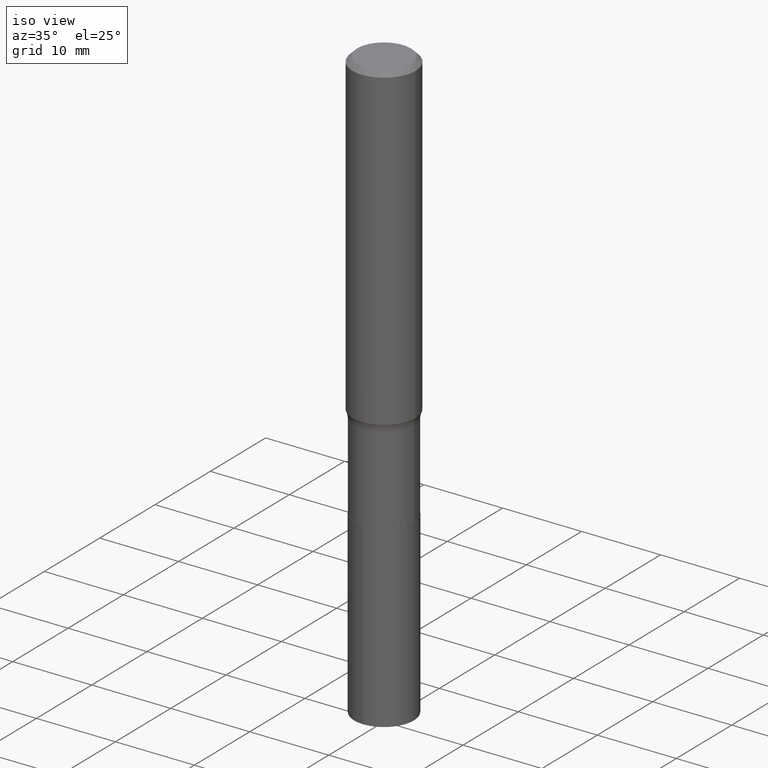
[diagram: clean part render]
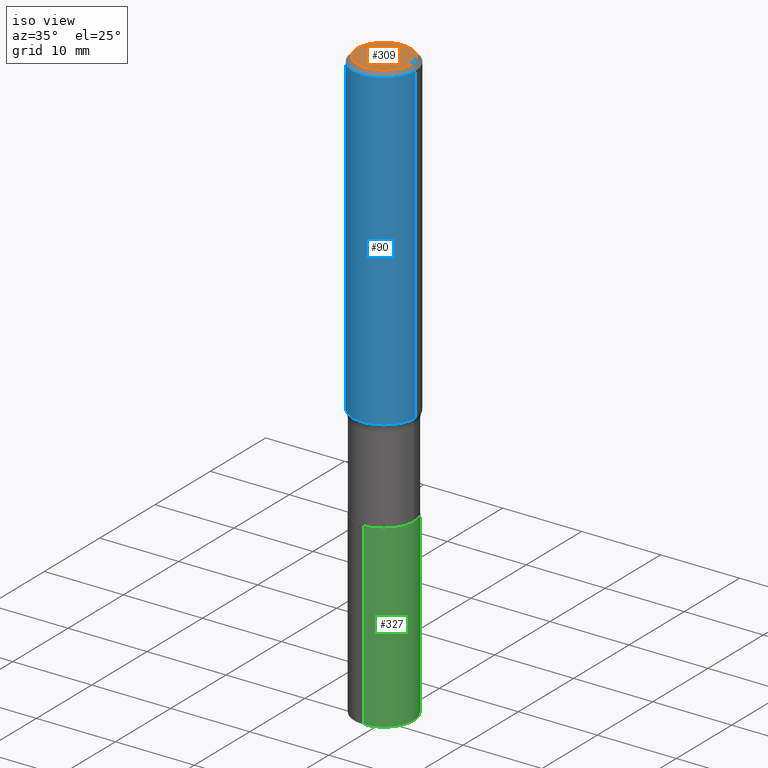
[diagram: same view with three faces highlighted in distinct colors, each labeled with its STEP entity id]
A machine part, iso view with three faces highlighted in distinct colors.
Their STEP definitions:

[orange] entity #309 — the highlighted planar face has unit normal (0, -0, -1).
#20 = AXIS2_PLACEMENT_3D ( 'NONE', #152, #405, #80 ) ;
#51 = EDGE_CURVE ( 'NONE', #133, #76, #303, .T. ) ;
#53 = EDGE_CURVE ( 'NONE', #76, #133, #254, .T. ) ;
#74 = FACE_OUTER_BOUND ( 'NONE', #247, .T. ) ;
#76 = VERTEX_POINT ( 'NONE', #419 ) ;
#80 = DIRECTION ( 'NONE',  ( 1.000000000000000000, -6.982962677686266711E-15, 4.876170806578254279E-29 ) ) ;
#91 = ORIENTED_EDGE ( 'NONE', *, *, #51, .T. ) ;
#110 = AXIS2_PLACEMENT_3D ( 'NONE', #260, #253, #321 ) ;
#133 = VERTEX_POINT ( 'NONE', #371 ) ;
#135 = DIRECTION ( 'NONE',  ( 1.000000000000000000, -6.982962677686266711E-15, 4.876170806578254279E-29 ) ) ;
#152 = CARTESIAN_POINT ( 'NONE',  ( -1.002970424325032604E-46, 1.431975951230895391E-32, 4.101342130344482109E-18 ) ) ;
#216 = ORIENTED_EDGE ( 'NONE', *, *, #53, .T. ) ;
#217 = DIRECTION ( 'NONE',  ( -2.445468806185136597E-29, 3.491481338843145583E-15, 1.000000000000000000 ) ) ;
#247 = EDGE_LOOP ( 'NONE', ( #216, #91 ) ) ;
#253 = DIRECTION ( 'NONE',  ( 2.438088387897960049E-29, -3.491481338843145188E-15, -1.000000000000000000 ) ) ;
#254 = CIRCLE ( 'NONE', #412, 0.1338749999999999940 ) ;
#260 = CARTESIAN_POINT ( 'NONE',  ( -5.014852121625163022E-47, 7.159879756154476955E-33, 2.050671065172241055E-18 ) ) ;
#289 = PLANE ( 'NONE',  #110 ) ;
#303 = CIRCLE ( 'NONE', #20, 0.1338749999999999940 ) ;
#309 = ADVANCED_FACE ( 'NONE', ( #74 ), #289, .F. ) ;
#321 = DIRECTION ( 'NONE',  ( -1.000000000000000000, 6.982962677686265922E-15, -4.876176775795935793E-29 ) ) ;
#371 = CARTESIAN_POINT ( 'NONE',  ( 0.1338749999999999940, -1.040731925365424925E-15, 4.101342130351390035E-18 ) ) ;
#405 = DIRECTION ( 'NONE',  ( -2.445468806185136597E-29, 3.491481338843145583E-15, 1.000000000000000000 ) ) ;
#412 = AXIS2_PLACEMENT_3D ( 'NONE', #455, #217, #135 ) ;
#419 = CARTESIAN_POINT ( 'NONE',  ( -0.1338749999999999940, 9.760872517903331886E-16, 4.101342130337800673E-18 ) ) ;
#455 = CARTESIAN_POINT ( 'NONE',  ( -1.002970424325032604E-46, 1.431975951230895391E-32, 4.101342130344482109E-18 ) ) ;

[blue] entity #90 — the highlighted cylindrical surface (partial cylindrical patch) has radius 4.0005 mm, axis along (-0, 0, 1).
#6 = EDGE_CURVE ( 'NONE', #150, #395, #160, .T. ) ;
#17 = EDGE_CURVE ( 'NONE', #18, #180, #223, .T. ) ;
#18 = VERTEX_POINT ( 'NONE', #452 ) ;
#43 = EDGE_CURVE ( 'NONE', #150, #18, #98, .T. ) ;
#46 = AXIS2_PLACEMENT_3D ( 'NONE', #428, #213, #355 ) ;
#57 = CARTESIAN_POINT ( 'NONE',  ( -0.1575000000000001954, -4.423060539265832036E-15, -1.587339243784791742 ) ) ;
#67 = CARTESIAN_POINT ( 'NONE',  ( 0.000000000000000000, 0.000000000000000000, 0.000000000000000000 ) ) ;
#69 = VECTOR ( 'NONE', #227, 39.37007874015748143 ) ;
#90 = ADVANCED_FACE ( 'NONE', ( #244 ), #283, .T. ) ;
#93 = CARTESIAN_POINT ( 'NONE',  ( 0.1575000000000001954, -6.641981969823579487E-15, -1.587339243784791742 ) ) ;
#98 = LINE ( 'NONE', #468, #69 ) ;
#100 = AXIS2_PLACEMENT_3D ( 'NONE', #344, #264, #291 ) ;
#112 = EDGE_CURVE ( 'NONE', #395, #180, #250, .T. ) ;
#150 = VERTEX_POINT ( 'NONE', #57 ) ;
#160 = CIRCLE ( 'NONE', #46, 0.1575000000000001954 ) ;
#176 = DIRECTION ( 'NONE',  ( -2.445468806185136597E-29, 3.491481338843145583E-15, 1.000000000000000000 ) ) ;
#180 = VERTEX_POINT ( 'NONE', #199 ) ;
#181 = DIRECTION ( 'NONE',  ( 1.000000000000000000, -6.982962677686267499E-15, 4.876176775795936353E-29 ) ) ;
#185 = ORIENTED_EDGE ( 'NONE', *, *, #43, .F. ) ;
#199 = CARTESIAN_POINT ( 'NONE',  ( 0.1575000000000000011, -1.182302868365756877E-15, -0.02362500000000015976 ) ) ;
#213 = DIRECTION ( 'NONE',  ( -2.445468806185136597E-29, 3.491481338843145583E-15, 1.000000000000000000 ) ) ;
#223 = CIRCLE ( 'NONE', #100, 0.1575000000000000011 ) ;
#227 = DIRECTION ( 'NONE',  ( -2.445468806185136877E-29, 3.491481338843145188E-15, 1.000000000000000000 ) ) ;
#231 = ORIENTED_EDGE ( 'NONE', *, *, #112, .T. ) ;
#244 = FACE_OUTER_BOUND ( 'NONE', #413, .T. ) ;
#250 = LINE ( 'NONE', #286, #324 ) ;
#264 = DIRECTION ( 'NONE',  ( -2.445468806185136597E-29, 3.491481338843145583E-15, 1.000000000000000000 ) ) ;
#276 = ORIENTED_EDGE ( 'NONE', *, *, #17, .F. ) ;
#283 = CYLINDRICAL_SURFACE ( 'NONE', #333, 0.1575000000000000844 ) ;
#286 = CARTESIAN_POINT ( 'NONE',  ( 0.1575000000000000844, -1.099816621735587677E-15, 7.679978421878603638E-30 ) ) ;
#291 = DIRECTION ( 'NONE',  ( 1.000000000000000000, -6.982962677686268288E-15, 0.000000000000000000 ) ) ;
#324 = VECTOR ( 'NONE', #426, 39.37007874015748143 ) ;
#333 = AXIS2_PLACEMENT_3D ( 'NONE', #67, #176, #181 ) ;
#344 = CARTESIAN_POINT ( 'NONE',  ( 5.777420054612423732E-31, -8.248624663016986467E-17, -0.02362500000000015976 ) ) ;
#355 = DIRECTION ( 'NONE',  ( 1.000000000000000000, -6.982962677686265922E-15, 0.000000000000000000 ) ) ;
#376 = ORIENTED_EDGE ( 'NONE', *, *, #6, .T. ) ;
#395 = VERTEX_POINT ( 'NONE', #93 ) ;
#413 = EDGE_LOOP ( 'NONE', ( #185, #376, #231, #276 ) ) ;
#426 = DIRECTION ( 'NONE',  ( -2.445468806185136877E-29, 3.491481338843145188E-15, 1.000000000000000000 ) ) ;
#428 = CARTESIAN_POINT ( 'NONE',  ( 3.881788605509211766E-29, -5.542165348087991217E-15, -1.587339243784791742 ) ) ;
#452 = CARTESIAN_POINT ( 'NONE',  ( -0.1575000000000000011, -1.693220988536922309E-15, -0.02362500000000015976 ) ) ;
#468 = CARTESIAN_POINT ( 'NONE',  ( -0.1575000000000000844, 1.119104808822158392E-15, -7.747322767151481189E-30 ) ) ;

[green] entity #327 — the highlighted cylindrical surface (edge-blend (fillet) strip) has radius 3.7706 mm, axis along (-0, 0, 1).
#2 = CARTESIAN_POINT ( 'NONE',  ( 1.054800691235940897E-15, 0.1484499999999928099, -2.056800000000000406 ) ) ;
#12 = CARTESIAN_POINT ( 'NONE',  ( 7.221015963033956989E-29, -1.030959501281485395E-14, -2.952800000000000313 ) ) ;
#22 = ORIENTED_EDGE ( 'NONE', *, *, #409, .T. ) ;
#37 = CARTESIAN_POINT ( 'NONE',  ( 5.029840240561588648E-29, -7.181278817732581070E-15, -2.056799999999999962 ) ) ;
#58 = CIRCLE ( 'NONE', #89, 0.1484499999999999986 ) ;
#72 = DIRECTION ( 'NONE',  ( -2.445508618830767481E-29, 3.491424324868607182E-15, 1.000000000000000000 ) ) ;
#88 = LINE ( 'NONE', #338, #269 ) ;
#89 = AXIS2_PLACEMENT_3D ( 'NONE', #37, #320, #458 ) ;
#107 = FACE_OUTER_BOUND ( 'NONE', #346, .T. ) ;
#128 = AXIS2_PLACEMENT_3D ( 'NONE', #398, #72, #265 ) ;
#141 = VERTEX_POINT ( 'NONE', #2 ) ;
#144 = EDGE_CURVE ( 'NONE', #383, #440, #443, .T. ) ;
#154 = DIRECTION ( 'NONE',  ( -2.445508618830767481E-29, 3.491424324868607182E-15, 1.000000000000000000 ) ) ;
#161 = EDGE_CURVE ( 'NONE', #383, #306, #202, .T. ) ;
#164 = CARTESIAN_POINT ( 'NONE',  ( -1.036620809502475803E-15, -0.1484500000000071873, -2.056799999999999073 ) ) ;
#175 = DIRECTION ( 'NONE',  ( -2.445508618830767481E-29, 3.491424324868607182E-15, 1.000000000000000000 ) ) ;
#177 = AXIS2_PLACEMENT_3D ( 'NONE', #12, #154, #381 ) ;
#201 = CARTESIAN_POINT ( 'NONE',  ( -1.036620809502453912E-15, -0.1484500000000102959, -2.952799999999999869 ) ) ;
#202 = LINE ( 'NONE', #164, #281 ) ;
#242 = ORIENTED_EDGE ( 'NONE', *, *, #161, .F. ) ;
#265 = DIRECTION ( 'NONE',  ( -6.982962677686265133E-15, -1.000000000000000000, 3.680495781292372402E-15 ) ) ;
#269 = VECTOR ( 'NONE', #175, 39.37007874015748143 ) ;
#281 = VECTOR ( 'NONE', #442, 39.37007874015748143 ) ;
#288 = CARTESIAN_POINT ( 'NONE',  ( -1.036620809502475803E-15, -0.1484500000000071873, -2.056799999999999073 ) ) ;
#306 = VERTEX_POINT ( 'NONE', #288 ) ;
#320 = DIRECTION ( 'NONE',  ( -2.445508618830767481E-29, 3.491424324868607182E-15, 1.000000000000000000 ) ) ;
#322 = EDGE_CURVE ( 'NONE', #306, #141, #58, .T. ) ;
#327 = ADVANCED_FACE ( 'NONE', ( #107 ), #401, .T. ) ;
#338 = CARTESIAN_POINT ( 'NONE',  ( 1.054800691235918809E-15, 0.1484499999999928099, -2.056800000000000406 ) ) ;
#346 = EDGE_LOOP ( 'NONE', ( #360, #22, #385, #242 ) ) ;
#360 = ORIENTED_EDGE ( 'NONE', *, *, #144, .T. ) ;
#377 = CARTESIAN_POINT ( 'NONE',  ( 1.054800691235929853E-15, 0.1484499999999896735, -2.952800000000000757 ) ) ;
#381 = DIRECTION ( 'NONE',  ( -6.982962677686265133E-15, -1.000000000000000000, 3.680495781292372402E-15 ) ) ;
#383 = VERTEX_POINT ( 'NONE', #201 ) ;
#385 = ORIENTED_EDGE ( 'NONE', *, *, #322, .F. ) ;
#398 = CARTESIAN_POINT ( 'NONE',  ( 5.029840240561588648E-29, -7.181278817732581070E-15, -2.056799999999999962 ) ) ;
#401 = CYLINDRICAL_SURFACE ( 'NONE', #128, 0.1484499999999999986 ) ;
#409 = EDGE_CURVE ( 'NONE', #440, #141, #88, .T. ) ;
#440 = VERTEX_POINT ( 'NONE', #377 ) ;
#442 = DIRECTION ( 'NONE',  ( -2.445508618830767481E-29, 3.491424324868607182E-15, 1.000000000000000000 ) ) ;
#443 = CIRCLE ( 'NONE', #177, 0.1484499999999999986 ) ;
#458 = DIRECTION ( 'NONE',  ( -6.982962677686265133E-15, -1.000000000000000000, 3.680495781292372402E-15 ) ) ;